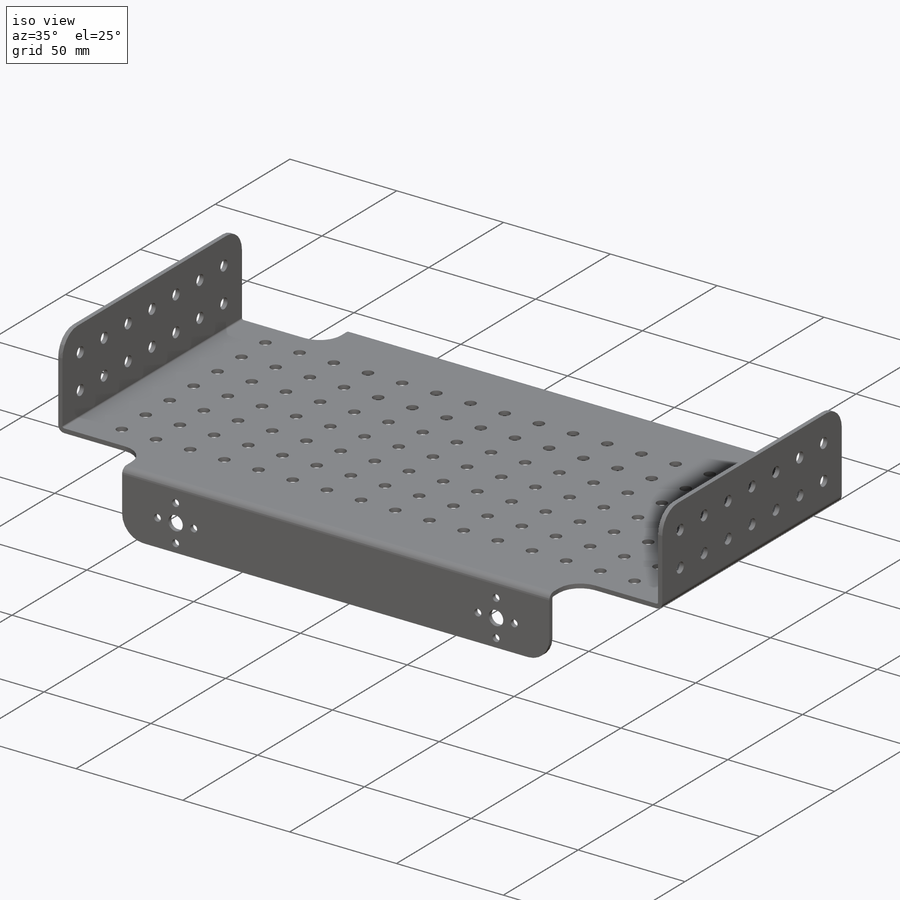
[diagram: iso view]
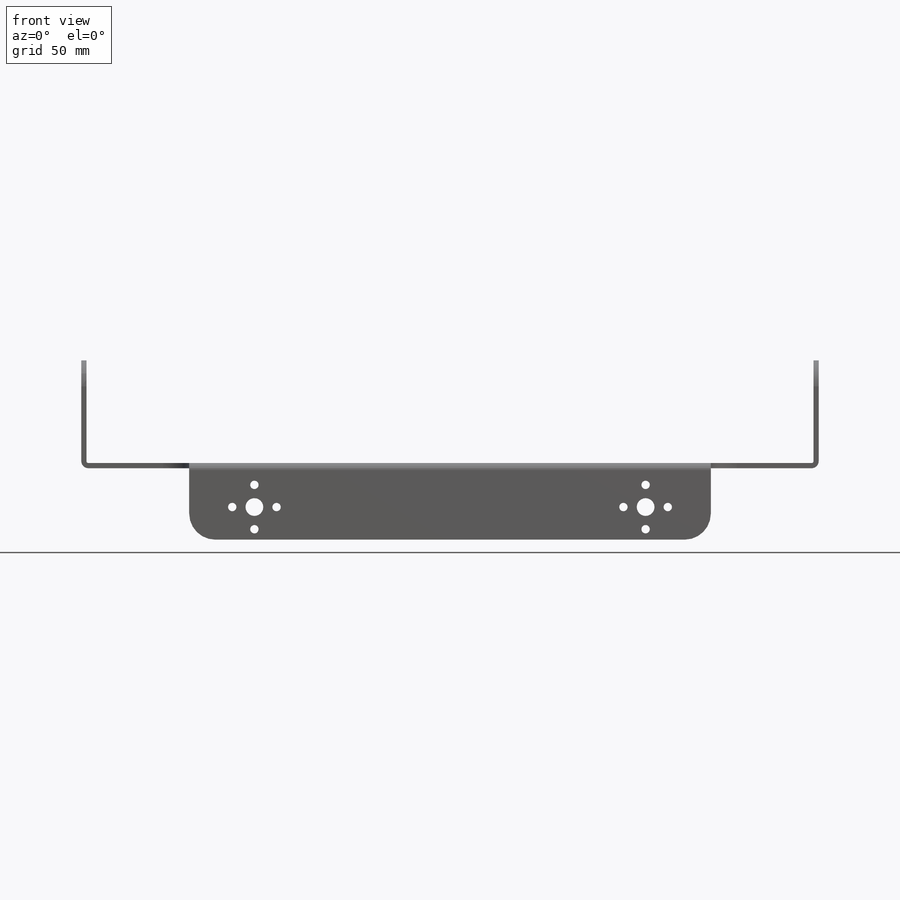
[diagram: front view]
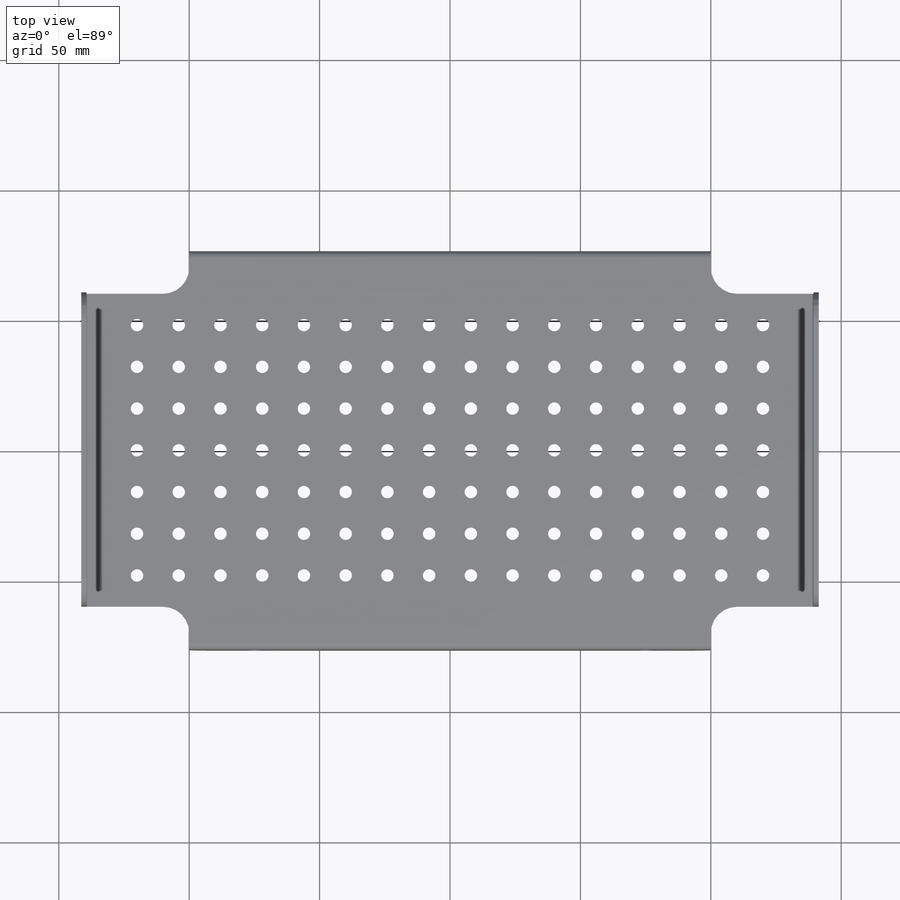
[diagram: top view]
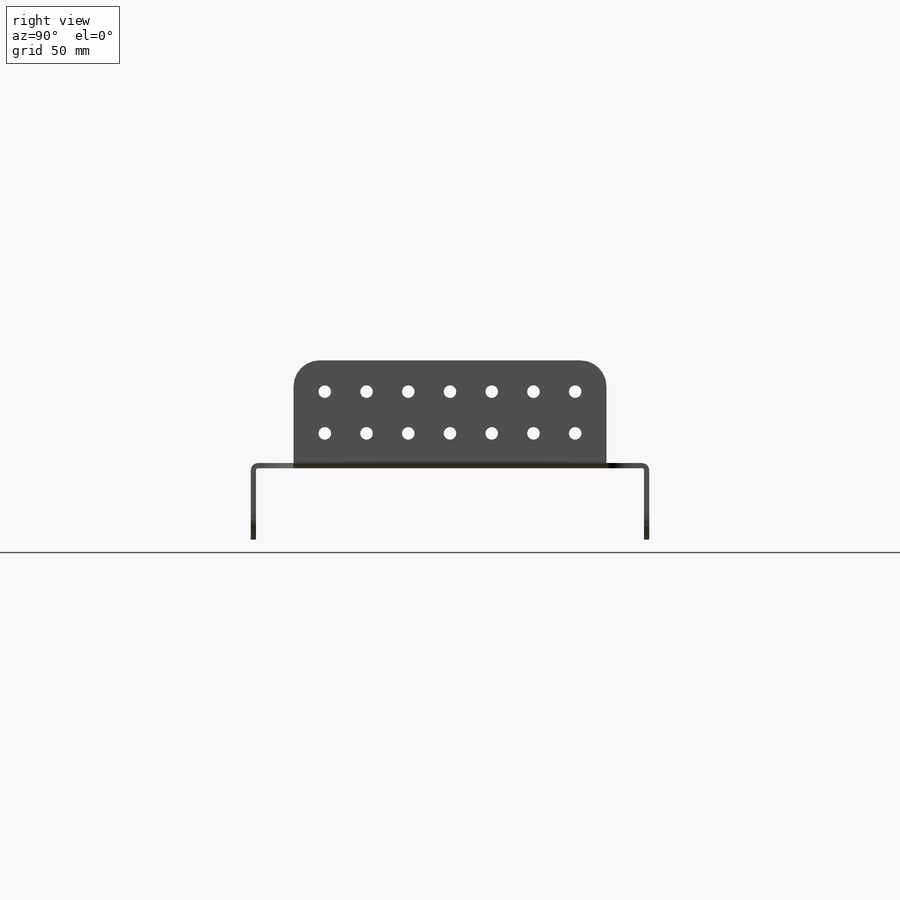
[diagram: right view]
SOLIDWORKS PART (.sldprt)
format: sldprt  version: not decoded by parser v0  size: 1,404,928 bytes
history: native  units: mm
features: sketch x22, sheet_metal_op x10, plane x3, mirror x2, material x1, fillet x1, cut_extrude x1, pattern_linear x1 + 13 further entries (+10 scaffold rows collapsed; 3 parser-record rows omitted)
feature tree (67):
  scaffold x10  (default folders/planes/origin — collapsed)
  material  "Material <not specified>"
  plane  "Plan de face"
  plane  "Plan de dessus"
  plane  "Plan de droite"
  sketch  "Esquisse1"  dims[c1.D1=200.0mm c1.D2=150.0mm c2.D1=200.0mm c2.D2=150.0mm c2.D3=25.0mm c3.D1=150.0mm c3.D2=200.0mm c4.D1=0.7366mm c4.D2=0.5 c4.D3=0.0mm c4.D6=500.0mm]
  sheet_metal_op  "Tôle de base pliée2"
  sketch  "Esquisse15"  dims[c1.D2=10.0mm c1.D5=3.2mm c1.D6=6.8mm c1.D1=28.0mm c1.D3=25.0mm c1.D4=17.0mm c1.D7=12.5mm c2.D3=12.5mm c2.D8=17.0mm c2.D9=87.5mm c3.D3=75.0mm]
  sheet_metal_op  "Patte2"
  mirror  "Symétrie1"
  sketch  "Sketch1"  dims[D2=10.0mm D1=80.0mm D3=120.0mm]
  sheet_metal_op  "Tab1"
  mirror  "Mirror2"
  fillet  "Fillet1"  Radius=10mm
  sketch  "Esquisse18"  dims[D1=4.8mm D2=168.0mm D3=48.0mm]
  cut_extrude  "Enlèv. mat.-Extru.1"  [1 undecoded]
  pattern_linear  "LPattern1"  Count1=22 Count2=7 Spacing1=16mm Spacing2=16mm
  sketch  "Esquisse19"
  "Transformation de l'esquisse7"
  sketch  "Sketch4"  dims[D1=40.0mm D2=~120.071269mm]
  parser-record x3  (decoder bookkeeping rows leaked as tree rows — omitted from the tree; the rows remain in map.json)
  sketch  "Lignes de pliage4"
  sketch  "Cube de visualisation4"
  sheet_metal_op  "Tôlerie3"
  "Etat déplié3"
  sketch  "Lignes de pliage5"
  sketch  "Cube de visualisation5"
  "Transformation de l'esquisse3"
  sheet_metal_op  "Tôlerie4"
  "Flat-Pattern8"
  sketch  "Lignes de pliage6"
  sketch  "Cube de visualisation6"
  "Transformation de l'esquisse5"
  sheet_metal_op  "Tôlerie5"
  "Flat-Pattern8"
  sketch  "Lignes de pliage6"
  sketch  "Cube de visualisation6"
  "Transformation de l'esquisse5"
  sheet_metal_op  "Tôlerie7"
  "Flat-Pattern8"
  sketch  "Lignes de pliage6"
  sketch  "Cube de visualisation6"
  "Transformation de l'esquisse5"
  sheet_metal_op  "Sheet-Metal8"
  "Flat-Pattern8"
  sketch  "Bend-Lines1"
  sketch  "Bounding-Box1"
  sheet_metal_op  "Sheet-Metal9"
  "Flat-Pattern8"
  sketch  "Bend-Lines1"
  sketch  "Bounding-Box1"
  sheet_metal_op  "Sheet-Metal10"
  "Flat-Pattern8"
  sketch  "Lignes de pliage6"
  sketch  "Cube de visualisation6"
  "Transformation de l'esquisse5"
decode coverage: 7 of 37 modeling features carry decoded parameters; 13 rows unclassified (native names shown)
note: ~ marks probable driven/reference dimensions
note: 1 parameter value undecoded
note: suppression state not decoded; provenance and decode notes live in map.json
